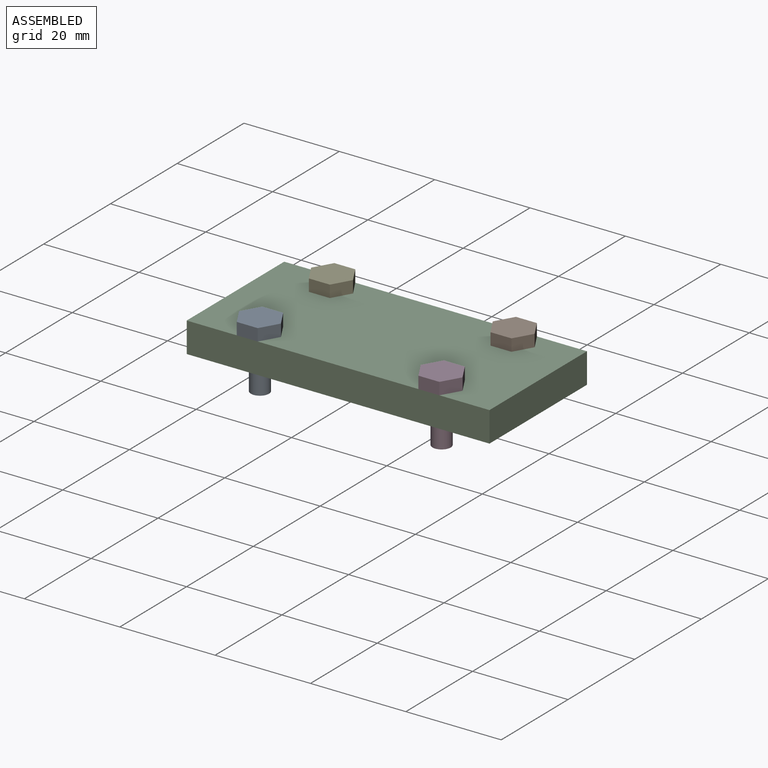
[diagram: assembled view]
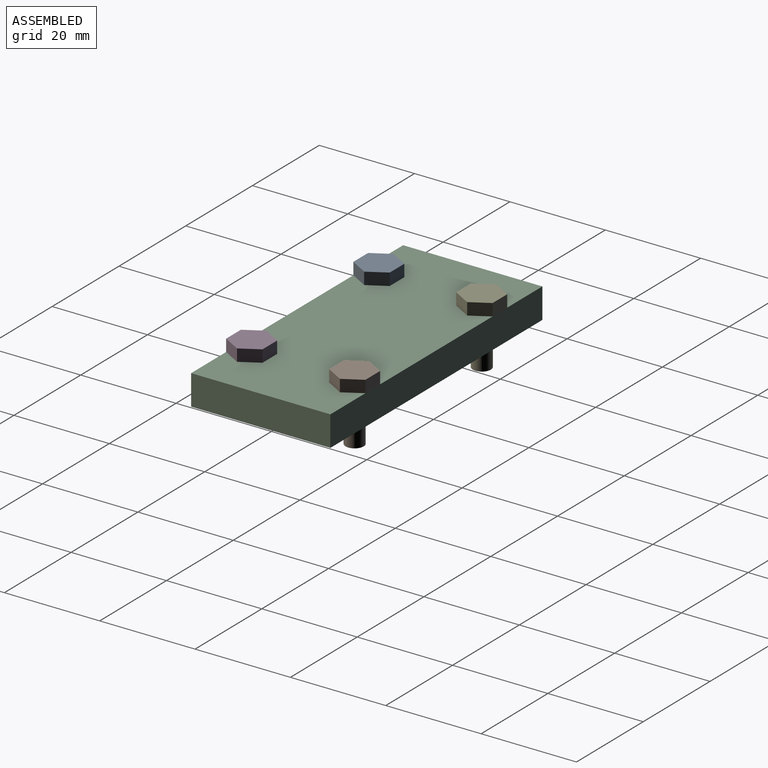
[diagram: assembled view, second angle]
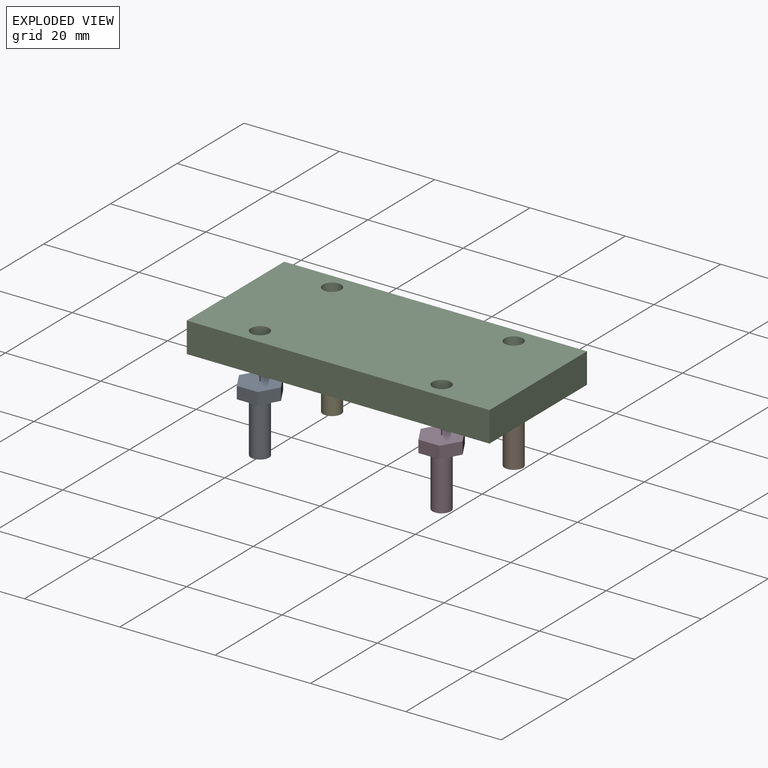
[diagram: exploded view]
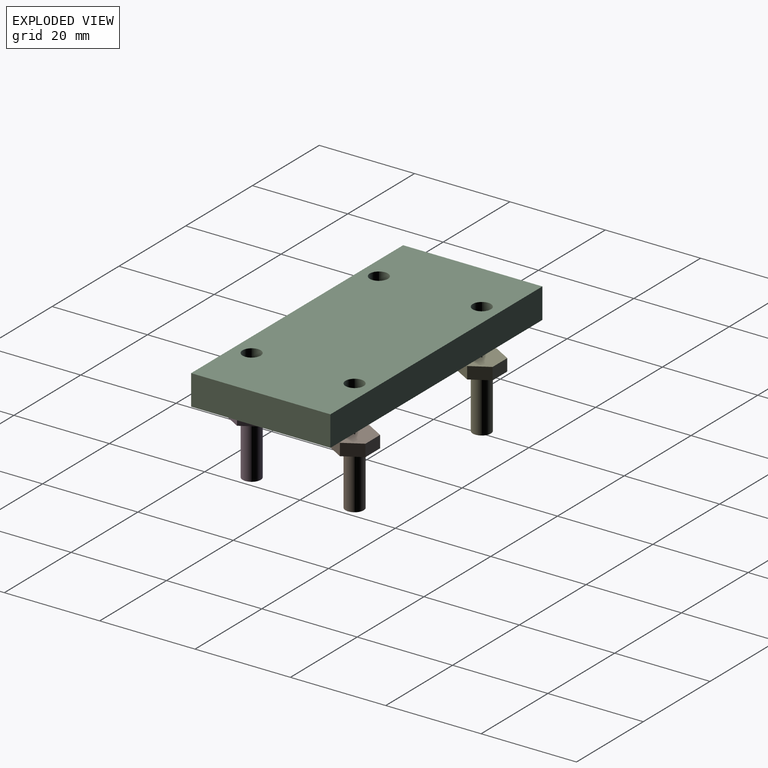
[diagram: exploded view, second angle]
ASSEMBLY  parts=5 mates=4
PART A: 10 faces, bbox 8.8x7.6x14 mm
  f0: plane 3.81x2.54mm, normal (0.87,0.5,0), area 11.2mm2, adj f1,f5,f6,f7
  f1: plane 4.4x2.54mm, normal (0,1,0), area 11.2mm2, adj f0,f2,f6,f7
  f2: plane 3.81x2.54mm, normal (-0.87,0.5,0), area 11.2mm2, adj f1,f3,f6,f7
  f3: plane 3.81x2.54mm, normal (-0.87,-0.5,0), area 11.2mm2, adj f2,f4,f6,f7
  f4: plane 4.4x2.54mm, normal (0,-1,0), area 11.2mm2, adj f3,f5,f6,f7
  f5: plane 3.81x2.54mm, normal (0.87,-0.5,0), area 11.2mm2, adj f0,f4,f6,f7
  f6: plane 8.8x7.62mm, normal (0,0,1), area 50.3mm2, adj f0,f1,f2,f3,f4,f5
  f7: plane 8.8x7.62mm, normal (0,0,-1), area 38.9mm2, adj f0,f1,f2,f3,f4,f5,f8
  f8: cylinder r=1.91mm len=11.43mm, axis (0,0,1), area 136.8mm2, adj f7,f9
  f9: plane 3.81x3.81mm, normal (0,0,-1), area 11.4mm2, adj f8
PART B: same geometry as A
PART C: 10 faces, bbox 63.5x29.2x6.4 mm
  f0: plane 63.5x29.21mm, normal (0,0,1), area 1809.2mm2, adj f2,f3,f4,f5,f6,f7,f8,f9
  f1: plane 63.5x29.21mm, normal (0,0,-1), area 1809.2mm2, adj f2,f3,f4,f5,f6,f7,f8,f9
  f2: plane 29.21x6.35mm, normal (-1,0,0), area 185.5mm2, adj f0,f1,f3,f5
  f3: plane 63.5x6.35mm, normal (0,-1,0), area 403.2mm2, adj f0,f1,f2,f4
  f4: plane 29.21x6.35mm, normal (1,0,0), area 185.5mm2, adj f0,f1,f3,f5
  f5: plane 63.5x6.35mm, normal (0,1,0), area 403.2mm2, adj f0,f1,f2,f4
  f6: cylinder r=1.91mm len=6.35mm, axis (0,0,-1), area 76mm2, adj f0,f1
  f7: cylinder r=1.91mm len=6.35mm, axis (0,0,-1), area 76mm2, adj f0,f1
  f8: cylinder r=1.91mm len=6.35mm, axis (0,0,-1), area 76mm2, adj f0,f1
  f9: cylinder r=1.91mm len=6.35mm, axis (0,0,-1), area 76mm2, adj f0,f1
PART D: same geometry as A
PART E: same geometry as A
PLACE A t=(-19.05,-10.8,6.35)mm
PLACE B t=(19.05,10.8,6.35)mm
PLACE C at identity fixed
PLACE D t=(19.05,-10.8,6.35)mm
PLACE E t=(-19.05,10.8,6.35)mm
MATE revolute D.f8 <-> C.f8  axis (0,0,-1) through (19.05,-10.8,6.35)mm
MATE revolute E.f8 <-> C.f6  axis (0,0,1) through (-19.05,10.8,6.35)mm
MATE revolute C.f7 <-> B.f8  axis (0,0,-1) through (19.05,10.8,6.35)mm
MATE revolute C.f9 <-> A.f8  axis (0,0,-1) through (-19.05,-10.8,6.35)mm
